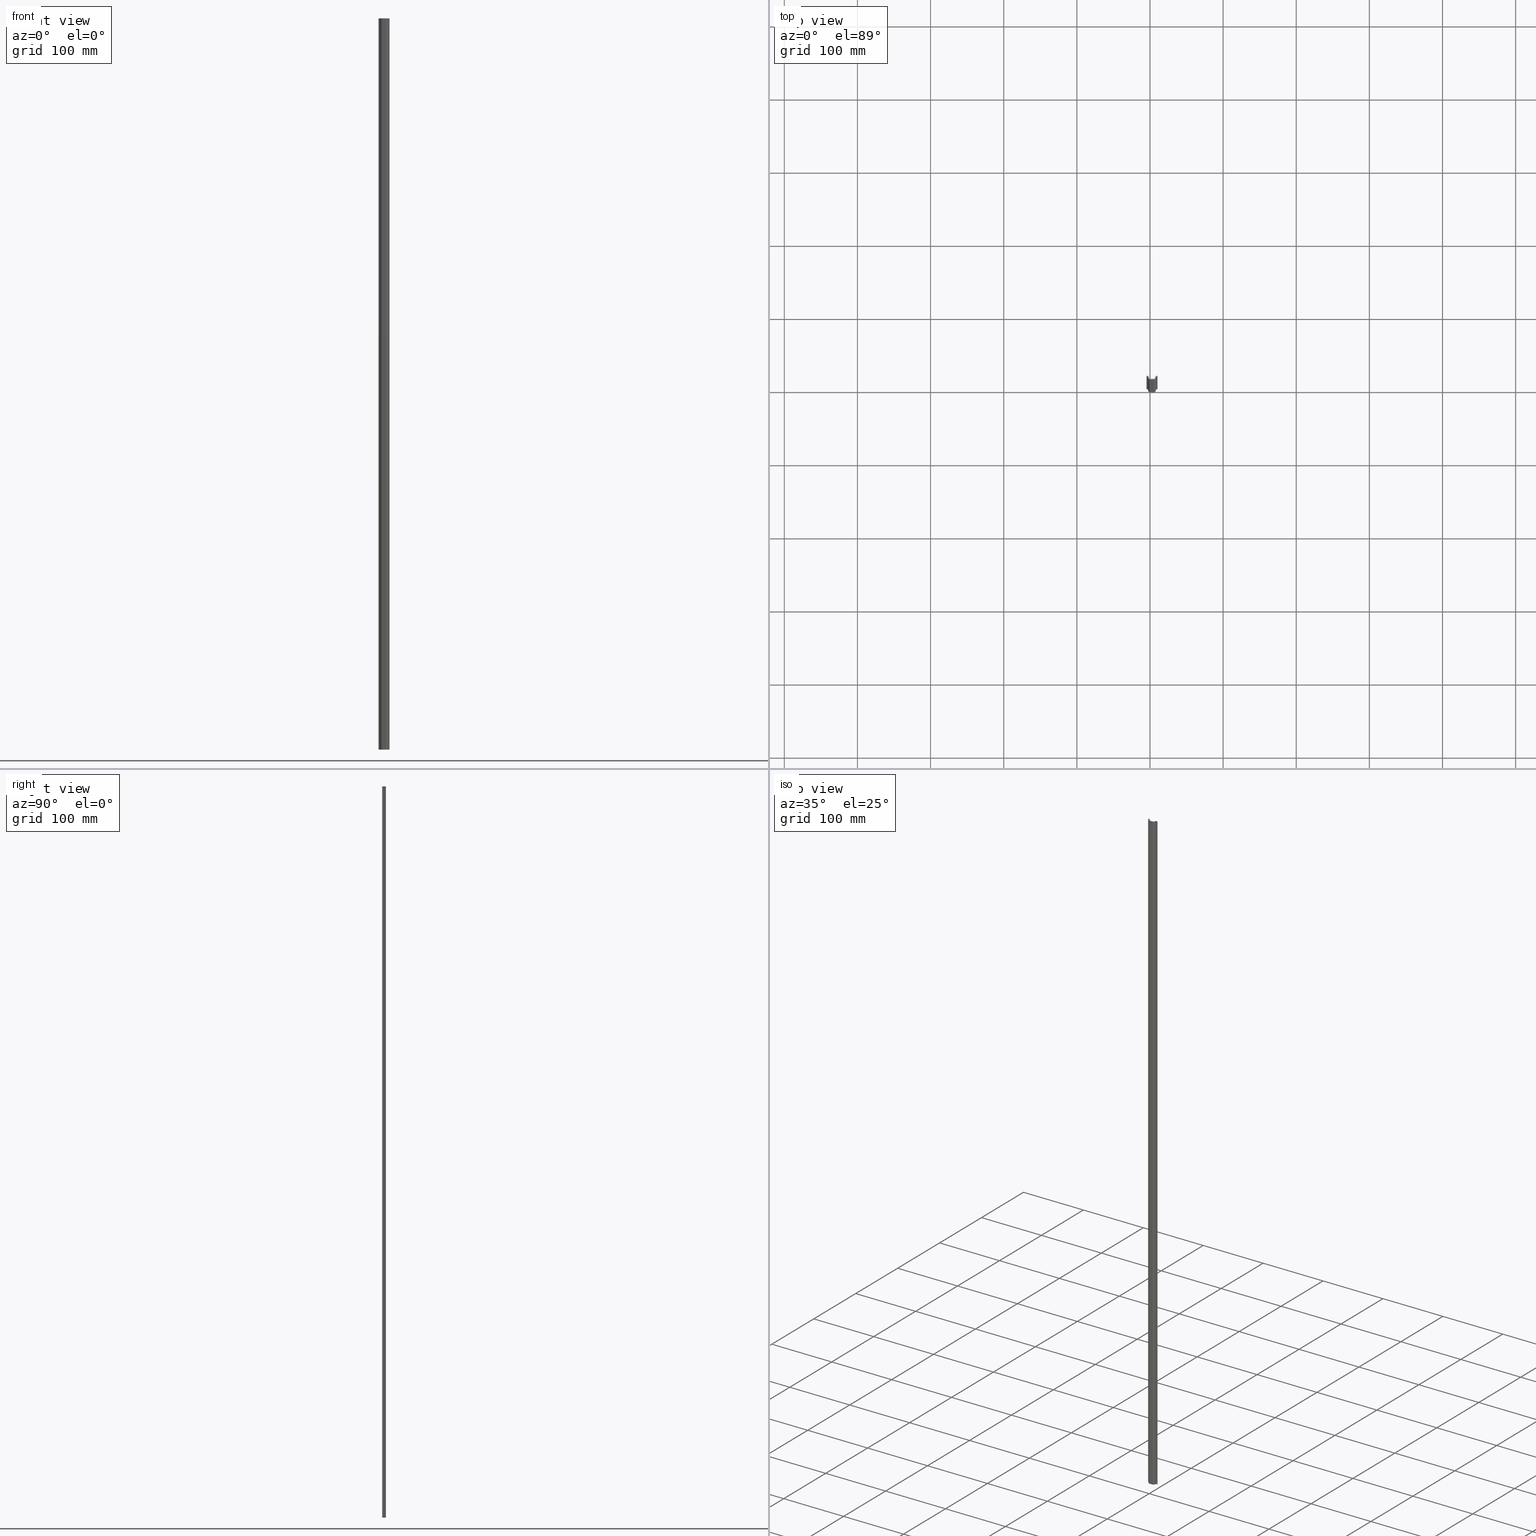
[diagram: canonical four-view strip — front | top / right | iso, engineering-drawing reading convention]
A machine part, canonical four-view strip (front | top / right | iso — engineering-drawing reading convention). The complete STEP part file that produces these views, byte-faithful:
ISO-10303-21;
HEADER;
FILE_DESCRIPTION (( 'STEP AP203' ),
    '1' );
FILE_NAME ('15x5,5 D�z Montaj Raylar� - 1 m.STEP',
    '2019-03-29T08:14:09',
    ( '' ),
    ( '' ),
    'SwSTEP 2.0',
    'SolidWorks 2011',
    '' );
FILE_SCHEMA (( 'CONFIG_CONTROL_DESIGN' ));
ENDSEC;

DATA;
#1 = PRODUCT ( '15x5,5 D�z Montaj Raylar� - 1 m', '15x5,5 D�z Montaj Raylar� - 1 m', '', ( #615 ) ) ;
#2 = MANIFOLD_SOLID_BREP ( 'Birle�tir1', #17 ) ;
#3 = UNCERTAINTY_MEASURE_WITH_UNIT (LENGTH_MEASURE( 1.000000000000000100E-005 ), #632, 'distance_accuracy_value', 'NONE');
#4 = DESIGN_CONTEXT ( 'detailed design', #685, 'design' ) ;
#5 = PRODUCT_DEFINITION_SHAPE ( 'NONE', 'NONE',  #760 ) ;
#6 = VECTOR ( 'NONE', #392, 1000.000000000000000 ) ;
#7 = VECTOR ( 'NONE', #378, 1000.000000000000000 ) ;
#8 = VECTOR ( 'NONE', #328, 1000.000000000000000 ) ;
#9 = CIRCLE ( 'NONE', #40, 1.200000000000089900 ) ;
#10 = VECTOR ( 'NONE', #445, 1000.000000000000000 ) ;
#11 = CIRCLE ( 'NONE', #37, 1.500000000000339500 ) ;
#12 = AXIS2_PLACEMENT_3D ( 'NONE', #446, #428, #416 ) ;
#13 = VECTOR ( 'NONE', #384, 1000.000000000000000 ) ;
#14 = CIRCLE ( 'NONE', #47, 1.200000000000588600 ) ;
#15 = VECTOR ( 'NONE', #452, 1000.000000000000000 ) ;
#16 = VECTOR ( 'NONE', #399, 1000.000000000000000 ) ;
#17 = CLOSED_SHELL ( 'NONE', ( #753, #778, #752, #771, #749, #756, #766, #776, #759, #738, #768, #739, #740, #755, #751, #775, #758, #757, #772, #765, #763, #764 ) ) ;
#18 = CIRCLE ( 'NONE', #29, 2.200000000000563300 ) ;
#19 = CIRCLE ( 'NONE', #44, 2.200000000000563300 ) ;
#20 = VECTOR ( 'NONE', #347, 1000.000000000000000 ) ;
#21 = CIRCLE ( 'NONE', #24, 1.200000000000089900 ) ;
#22 = VECTOR ( 'NONE', #394, 1000.000000000000000 ) ;
#23 = VECTOR ( 'NONE', #379, 1000.000000000000000 ) ;
#24 = AXIS2_PLACEMENT_3D ( 'NONE', #405, #374, #377 ) ;
#25 = VECTOR ( 'NONE', #450, 1000.000000000000000 ) ;
#26 = VECTOR ( 'NONE', #417, 1000.000000000000000 ) ;
#27 = AXIS2_PLACEMENT_3D ( 'NONE', #382, #383, #401 ) ;
#28 = VECTOR ( 'NONE', #367, 1000.000000000000000 ) ;
#29 = AXIS2_PLACEMENT_3D ( 'NONE', #398, #366, #368 ) ;
#30 = VECTOR ( 'NONE', #414, 1000.000000000000000 ) ;
#31 = VECTOR ( 'NONE', #415, 1000.000000000000000 ) ;
#32 = VECTOR ( 'NONE', #410, 1000.000000000000000 ) ;
#33 = VECTOR ( 'NONE', #385, 1000.000000000000000 ) ;
#34 = VECTOR ( 'NONE', #393, 1000.000000000000000 ) ;
#35 = VECTOR ( 'NONE', #456, 1000.000000000000000 ) ;
#36 = CIRCLE ( 'NONE', #12, 2.500000000000150500 ) ;
#37 = AXIS2_PLACEMENT_3D ( 'NONE', #437, #433, #438 ) ;
#38 = VECTOR ( 'NONE', #334, 1000.000000000000000 ) ;
#39 = VECTOR ( 'NONE', #396, 1000.000000000000000 ) ;
#40 = AXIS2_PLACEMENT_3D ( 'NONE', #389, #397, #404 ) ;
#41 = CIRCLE ( 'NONE', #27, 1.500000000000167000 ) ;
#42 = VECTOR ( 'NONE', #420, 1000.000000000000000 ) ;
#43 = VECTOR ( 'NONE', #425, 1000.000000000000000 ) ;
#44 = AXIS2_PLACEMENT_3D ( 'NONE', #322, #345, #346 ) ;
#45 = AXIS2_PLACEMENT_3D ( 'NONE', #348, #350, #354 ) ;
#46 = CIRCLE ( 'NONE', #45, 1.200000000000588600 ) ;
#47 = AXIS2_PLACEMENT_3D ( 'NONE', #388, #400, #380 ) ;
#48 = VECTOR ( 'NONE', #340, 1000.000000000000000 ) ;
#49 = VECTOR ( 'NONE', #491, 1000.000000000000000 ) ;
#50 = AXIS2_PLACEMENT_3D ( 'NONE', #507, #532, #528 ) ;
#51 = AXIS2_PLACEMENT_3D ( 'NONE', #470, #458, #461 ) ;
#52 = VECTOR ( 'NONE', #471, 1000.000000000000000 ) ;
#53 = AXIS2_PLACEMENT_3D ( 'NONE', #553, #580, #568 ) ;
#54 = AXIS2_PLACEMENT_3D ( 'NONE', #595, #567, #591 ) ;
#55 = VECTOR ( 'NONE', #423, 1000.000000000000000 ) ;
#56 = VECTOR ( 'NONE', #539, 1000.000000000000000 ) ;
#57 = CIRCLE ( 'NONE', #92, 2.500000000000280700 ) ;
#58 = CIRCLE ( 'NONE', #51, 2.200000000000120100 ) ;
#59 = VECTOR ( 'NONE', #475, 1000.000000000000000 ) ;
#60 = VECTOR ( 'NONE', #455, 1000.000000000000000 ) ;
#61 = VECTOR ( 'NONE', #459, 1000.000000000000000 ) ;
#62 = VECTOR ( 'NONE', #505, 1000.000000000000000 ) ;
#63 = VECTOR ( 'NONE', #466, 1000.000000000000000 ) ;
#64 = AXIS2_PLACEMENT_3D ( 'NONE', #543, #514, #540 ) ;
#65 = AXIS2_PLACEMENT_3D ( 'NONE', #601, #623, #607 ) ;
#66 = VECTOR ( 'NONE', #486, 1000.000000000000000 ) ;
#67 = VECTOR ( 'NONE', #511, 1000.000000000000000 ) ;
#68 = AXIS2_PLACEMENT_3D ( 'NONE', #519, #521, #500 ) ;
#69 = AXIS2_PLACEMENT_3D ( 'NONE', #492, #493, #489 ) ;
#70 = VECTOR ( 'NONE', #508, 1000.000000000000000 ) ;
#71 = AXIS2_PLACEMENT_3D ( 'NONE', #555, #561, #586 ) ;
#72 = VECTOR ( 'NONE', #545, 1000.000000000000000 ) ;
#73 = AXIS2_PLACEMENT_3D ( 'NONE', #537, #501, #541 ) ;
#74 = CIRCLE ( 'NONE', #99, 1.500000000000167000 ) ;
#75 = AXIS2_PLACEMENT_3D ( 'NONE', #556, #558, #573 ) ;
#76 = AXIS2_PLACEMENT_3D ( 'NONE', #534, #538, #565 ) ;
#77 = CIRCLE ( 'NONE', #105, 2.200000000000120100 ) ;
#78 = AXIS2_PLACEMENT_3D ( 'NONE', #587, #549, #572 ) ;
#79 = AXIS2_PLACEMENT_3D ( 'NONE', #548, #585, #551 ) ;
#80 = AXIS2_PLACEMENT_3D ( 'NONE', #559, #575, #582 ) ;
#81 = VECTOR ( 'NONE', #513, 1000.000000000000000 ) ;
#82 = VECTOR ( 'NONE', #494, 1000.000000000000000 ) ;
#83 = VECTOR ( 'NONE', #485, 1000.000000000000000 ) ;
#84 = CIRCLE ( 'NONE', #50, 2.500000000000280700 ) ;
#85 = AXIS2_PLACEMENT_3D ( 'NONE', #563, #589, #576 ) ;
#86 = AXIS2_PLACEMENT_3D ( 'NONE', #588, #562, #578 ) ;
#87 = AXIS2_PLACEMENT_3D ( 'NONE', #626, #622, #628 ) ;
#88 = AXIS2_PLACEMENT_3D ( 'NONE', #605, #643, #606 ) ;
#89 =( GEOMETRIC_REPRESENTATION_CONTEXT ( 3 ) GLOBAL_UNCERTAINTY_ASSIGNED_CONTEXT ( ( #3 ) ) GLOBAL_UNIT_ASSIGNED_CONTEXT ( ( #632, #633, #600 ) ) REPRESENTATION_CONTEXT ( 'NONE', 'WORKASPACE' ) );
#90 = CIRCLE ( 'NONE', #73, 1.500000000000339500 ) ;
#91 = AXIS2_PLACEMENT_3D ( 'NONE', #629, #642, #640 ) ;
#92 = AXIS2_PLACEMENT_3D ( 'NONE', #476, #482, #496 ) ;
#93 = CIRCLE ( 'NONE', #69, 2.500000000000150500 ) ;
#94 = VECTOR ( 'NONE', #529, 1000.000000000000000 ) ;
#95 = AXIS2_PLACEMENT_3D ( 'NONE', #638, #609, #637 ) ;
#96 = AXIS2_PLACEMENT_3D ( 'NONE', #506, #522, #536 ) ;
#97 = AXIS2_PLACEMENT_3D ( 'NONE', #526, #516, #542 ) ;
#98 = AXIS2_PLACEMENT_3D ( 'NONE', #611, #624, #639 ) ;
#99 = AXIS2_PLACEMENT_3D ( 'NONE', #465, #468, #480 ) ;
#100 = VECTOR ( 'NONE', #427, 1000.000000000000000 ) ;
#101 = VECTOR ( 'NONE', #430, 1000.000000000000000 ) ;
#102 = VECTOR ( 'NONE', #487, 1000.000000000000000 ) ;
#103 = AXIS2_PLACEMENT_3D ( 'NONE', #598, #594, #571 ) ;
#104 = AXIS2_PLACEMENT_3D ( 'NONE', #610, #636, #641 ) ;
#105 = AXIS2_PLACEMENT_3D ( 'NONE', #477, #474, #462 ) ;
#106 = CC_DESIGN_APPROVAL ( #774, ( #760 ) ) ;
#107 = AXIS2_PLACEMENT_3D ( 'NONE', #621, #616, #635 ) ;
#108 = LOCAL_TIME ( 11, 14, 9.000000000000000000, #648 ) ;
#109 = ORGANIZATION ( 'BEL�RT�LMEM��', 'BEL�RT�LMEM��', '' ) ;
#110 = PRODUCT_DEFINITION_FORMATION_WITH_SPECIFIED_SOURCE ( '     Herhangi', '', #1, .NOT_KNOWN. ) ;
#111 = LOCAL_TIME ( 11, 14, 9.000000000000000000, #674 ) ;
#112 = CC_DESIGN_SECURITY_CLASSIFICATION ( #114, ( #110 ) ) ;
#113 = LOCAL_TIME ( 11, 14, 9.000000000000000000, #665 ) ;
#114 = SECURITY_CLASSIFICATION ( '', '', #663 ) ;
#115 = CC_DESIGN_APPROVAL ( #779, ( #114 ) ) ;
#116 = APPROVAL_PERSON_ORGANIZATION ( #649, #754, #660 ) ;
#117 = LOCAL_TIME ( 11, 14, 9.000000000000000000, #675 ) ;
#118 = CC_DESIGN_APPROVAL ( #754, ( #110 ) ) ;
#119 = LOCAL_TIME ( 11, 14, 9.000000000000000000, #659 ) ;
#120 = APPROVAL_PERSON_ORGANIZATION ( #673, #774, #650 ) ;
#121 = APPROVAL_PERSON_ORGANIZATION ( #681, #779, #664 ) ;
#122 = ORIENTED_EDGE ( 'NONE', *, *, #692, .T. ) ;
#123 = ORIENTED_EDGE ( 'NONE', *, *, #743, .F. ) ;
#124 = ORIENTED_EDGE ( 'NONE', *, *, #724, .F. ) ;
#125 = ORIENTED_EDGE ( 'NONE', *, *, #692, .F. ) ;
#126 = ORIENTED_EDGE ( 'NONE', *, *, #746, .F. ) ;
#127 = ORIENTED_EDGE ( 'NONE', *, *, #742, .F. ) ;
#128 = ORIENTED_EDGE ( 'NONE', *, *, #699, .F. ) ;
#129 = ORIENTED_EDGE ( 'NONE', *, *, #697, .T. ) ;
#130 = ORIENTED_EDGE ( 'NONE', *, *, #709, .F. ) ;
#131 = ORIENTED_EDGE ( 'NONE', *, *, #737, .F. ) ;
#132 = ORIENTED_EDGE ( 'NONE', *, *, #721, .F. ) ;
#133 = ORIENTED_EDGE ( 'NONE', *, *, #691, .F. ) ;
#134 = ORIENTED_EDGE ( 'NONE', *, *, #711, .F. ) ;
#135 = ORIENTED_EDGE ( 'NONE', *, *, #717, .T. ) ;
#136 = ORIENTED_EDGE ( 'NONE', *, *, #707, .T. ) ;
#137 = ORIENTED_EDGE ( 'NONE', *, *, #747, .T. ) ;
#138 = ORIENTED_EDGE ( 'NONE', *, *, #746, .T. ) ;
#139 = ORIENTED_EDGE ( 'NONE', *, *, #732, .F. ) ;
#140 = ORIENTED_EDGE ( 'NONE', *, *, #703, .F. ) ;
#141 = ORIENTED_EDGE ( 'NONE', *, *, #694, .T. ) ;
#142 = ORIENTED_EDGE ( 'NONE', *, *, #706, .F. ) ;
#143 = ORIENTED_EDGE ( 'NONE', *, *, #690, .F. ) ;
#144 = ORIENTED_EDGE ( 'NONE', *, *, #700, .F. ) ;
#145 = ORIENTED_EDGE ( 'NONE', *, *, #730, .F. ) ;
#146 = ORIENTED_EDGE ( 'NONE', *, *, #720, .F. ) ;
#147 = ORIENTED_EDGE ( 'NONE', *, *, #687, .F. ) ;
#148 = ORIENTED_EDGE ( 'NONE', *, *, #693, .F. ) ;
#149 = ORIENTED_EDGE ( 'NONE', *, *, #741, .F. ) ;
#150 = ORIENTED_EDGE ( 'NONE', *, *, #717, .F. ) ;
#151 = ORIENTED_EDGE ( 'NONE', *, *, #748, .T. ) ;
#152 = ORIENTED_EDGE ( 'NONE', *, *, #729, .F. ) ;
#153 = ORIENTED_EDGE ( 'NONE', *, *, #708, .T. ) ;
#154 = ORIENTED_EDGE ( 'NONE', *, *, #714, .F. ) ;
#155 = ORIENTED_EDGE ( 'NONE', *, *, #729, .T. ) ;
#156 = ORIENTED_EDGE ( 'NONE', *, *, #744, .F. ) ;
#157 = ORIENTED_EDGE ( 'NONE', *, *, #723, .F. ) ;
#158 = ORIENTED_EDGE ( 'NONE', *, *, #713, .T. ) ;
#159 = ORIENTED_EDGE ( 'NONE', *, *, #719, .F. ) ;
#160 = ORIENTED_EDGE ( 'NONE', *, *, #695, .T. ) ;
#161 = ORIENTED_EDGE ( 'NONE', *, *, #690, .T. ) ;
#162 = ORIENTED_EDGE ( 'NONE', *, *, #734, .T. ) ;
#163 = ORIENTED_EDGE ( 'NONE', *, *, #722, .F. ) ;
#164 = ORIENTED_EDGE ( 'NONE', *, *, #687, .T. ) ;
#165 = ORIENTED_EDGE ( 'NONE', *, *, #719, .T. ) ;
#166 = ORIENTED_EDGE ( 'NONE', *, *, #714, .T. ) ;
#167 = ORIENTED_EDGE ( 'NONE', *, *, #693, .T. ) ;
#168 = ORIENTED_EDGE ( 'NONE', *, *, #698, .F. ) ;
#169 = ORIENTED_EDGE ( 'NONE', *, *, #722, .T. ) ;
#170 = ORIENTED_EDGE ( 'NONE', *, *, #716, .F. ) ;
#171 = ORIENTED_EDGE ( 'NONE', *, *, #696, .T. ) ;
#172 = ORIENTED_EDGE ( 'NONE', *, *, #696, .F. ) ;
#173 = ORIENTED_EDGE ( 'NONE', *, *, #688, .T. ) ;
#174 = ORIENTED_EDGE ( 'NONE', *, *, #726, .T. ) ;
#175 = ORIENTED_EDGE ( 'NONE', *, *, #715, .T. ) ;
#176 = ORIENTED_EDGE ( 'NONE', *, *, #733, .T. ) ;
#177 = ORIENTED_EDGE ( 'NONE', *, *, #697, .F. ) ;
#178 = ORIENTED_EDGE ( 'NONE', *, *, #747, .F. ) ;
#179 = ORIENTED_EDGE ( 'NONE', *, *, #704, .F. ) ;
#180 = ORIENTED_EDGE ( 'NONE', *, *, #702, .T. ) ;
#181 = ORIENTED_EDGE ( 'NONE', *, *, #686, .F. ) ;
#182 = ORIENTED_EDGE ( 'NONE', *, *, #730, .T. ) ;
#183 = ORIENTED_EDGE ( 'NONE', *, *, #699, .T. ) ;
#184 = ORIENTED_EDGE ( 'NONE', *, *, #732, .T. ) ;
#185 = ORIENTED_EDGE ( 'NONE', *, *, #725, .T. ) ;
#186 = ORIENTED_EDGE ( 'NONE', *, *, #727, .T. ) ;
#187 = ORIENTED_EDGE ( 'NONE', *, *, #689, .T. ) ;
#188 = ORIENTED_EDGE ( 'NONE', *, *, #712, .T. ) ;
#189 = ORIENTED_EDGE ( 'NONE', *, *, #711, .T. ) ;
#190 = ORIENTED_EDGE ( 'NONE', *, *, #737, .T. ) ;
#191 = ORIENTED_EDGE ( 'NONE', *, *, #743, .T. ) ;
#192 = ORIENTED_EDGE ( 'NONE', *, *, #710, .T. ) ;
#193 = ORIENTED_EDGE ( 'NONE', *, *, #700, .T. ) ;
#194 = ORIENTED_EDGE ( 'NONE', *, *, #710, .F. ) ;
#195 = ORIENTED_EDGE ( 'NONE', *, *, #718, .F. ) ;
#196 = CARTESIAN_POINT ( 'NONE',  ( -3.700000000000881300, 5.300000000000766300, 0.0000000000000000000 ) ) ;
#197 = CARTESIAN_POINT ( 'NONE',  ( 7.999999999999386300, 3.099999999999913500, 1000.000000000000000 ) ) ;
#198 = ORIENTED_EDGE ( 'NONE', *, *, #695, .F. ) ;
#199 = ORIENTED_EDGE ( 'NONE', *, *, #686, .T. ) ;
#200 = ORIENTED_EDGE ( 'NONE', *, *, #718, .T. ) ;
#201 = ORIENTED_EDGE ( 'NONE', *, *, #715, .F. ) ;
#202 = ORIENTED_EDGE ( 'NONE', *, *, #701, .F. ) ;
#203 = EDGE_LOOP ( 'NONE', ( #140, #146, #162, #132 ) ) ;
#204 = EDGE_LOOP ( 'NONE', ( #180, #145, #147, #127 ) ) ;
#205 = EDGE_LOOP ( 'NONE', ( #211, #234, #139, #138 ) ) ;
#206 = ORIENTED_EDGE ( 'NONE', *, *, #745, .F. ) ;
#207 = ORIENTED_EDGE ( 'NONE', *, *, #728, .F. ) ;
#208 = ORIENTED_EDGE ( 'NONE', *, *, #741, .T. ) ;
#209 = ORIENTED_EDGE ( 'NONE', *, *, #748, .F. ) ;
#210 = ORIENTED_EDGE ( 'NONE', *, *, #723, .T. ) ;
#211 = ORIENTED_EDGE ( 'NONE', *, *, #728, .T. ) ;
#212 = ORIENTED_EDGE ( 'NONE', *, *, #698, .T. ) ;
#213 = ORIENTED_EDGE ( 'NONE', *, *, #734, .F. ) ;
#214 = ORIENTED_EDGE ( 'NONE', *, *, #689, .F. ) ;
#215 = ORIENTED_EDGE ( 'NONE', *, *, #705, .T. ) ;
#216 = ORIENTED_EDGE ( 'NONE', *, *, #731, .T. ) ;
#217 = ORIENTED_EDGE ( 'NONE', *, *, #713, .F. ) ;
#218 = ORIENTED_EDGE ( 'NONE', *, *, #688, .F. ) ;
#219 = ORIENTED_EDGE ( 'NONE', *, *, #736, .F. ) ;
#220 = ORIENTED_EDGE ( 'NONE', *, *, #733, .F. ) ;
#221 = ORIENTED_EDGE ( 'NONE', *, *, #701, .T. ) ;
#222 = EDGE_LOOP ( 'NONE', ( #177, #159, #130, #126 ) ) ;
#223 = ORIENTED_EDGE ( 'NONE', *, *, #744, .T. ) ;
#224 = ORIENTED_EDGE ( 'NONE', *, *, #707, .F. ) ;
#225 = ORIENTED_EDGE ( 'NONE', *, *, #694, .F. ) ;
#226 = ORIENTED_EDGE ( 'NONE', *, *, #721, .T. ) ;
#227 = ORIENTED_EDGE ( 'NONE', *, *, #691, .T. ) ;
#228 = ORIENTED_EDGE ( 'NONE', *, *, #726, .F. ) ;
#229 = ORIENTED_EDGE ( 'NONE', *, *, #735, .T. ) ;
#230 = ORIENTED_EDGE ( 'NONE', *, *, #725, .F. ) ;
#231 = ORIENTED_EDGE ( 'NONE', *, *, #727, .F. ) ;
#232 = ORIENTED_EDGE ( 'NONE', *, *, #709, .T. ) ;
#233 = EDGE_LOOP ( 'NONE', ( #201, #174, #124, #152, #143, #167, #153, #227, #214, #243, #206, #231, #220, #248, #207, #232, #191, #208, #237, #244 ) ) ;
#234 = ORIENTED_EDGE ( 'NONE', *, *, #703, .T. ) ;
#235 = ORIENTED_EDGE ( 'NONE', *, *, #745, .T. ) ;
#236 = ORIENTED_EDGE ( 'NONE', *, *, #702, .F. ) ;
#237 = ORIENTED_EDGE ( 'NONE', *, *, #705, .F. ) ;
#238 = ORIENTED_EDGE ( 'NONE', *, *, #736, .T. ) ;
#239 = ORIENTED_EDGE ( 'NONE', *, *, #724, .T. ) ;
#240 = ORIENTED_EDGE ( 'NONE', *, *, #712, .F. ) ;
#241 = ORIENTED_EDGE ( 'NONE', *, *, #706, .T. ) ;
#242 = ORIENTED_EDGE ( 'NONE', *, *, #735, .F. ) ;
#243 = ORIENTED_EDGE ( 'NONE', *, *, #716, .T. ) ;
#244 = ORIENTED_EDGE ( 'NONE', *, *, #742, .T. ) ;
#245 = ORIENTED_EDGE ( 'NONE', *, *, #704, .T. ) ;
#246 = ORIENTED_EDGE ( 'NONE', *, *, #731, .F. ) ;
#247 = ORIENTED_EDGE ( 'NONE', *, *, #708, .F. ) ;
#248 = ORIENTED_EDGE ( 'NONE', *, *, #720, .T. ) ;
#249 = EDGE_LOOP ( 'NONE', ( #194, #223, #123, #165 ) ) ;
#250 = EDGE_LOOP ( 'NONE', ( #175, #164, #246, #188 ) ) ;
#251 = VERTEX_POINT ( 'NONE', #301 ) ;
#252 = VERTEX_POINT ( 'NONE', #296 ) ;
#253 = VERTEX_POINT ( 'NONE', #302 ) ;
#254 = VERTEX_POINT ( 'NONE', #196 ) ;
#255 = EDGE_LOOP ( 'NONE', ( #209, #155, #157, #230 ) ) ;
#256 = VERTEX_POINT ( 'NONE', #197 ) ;
#257 = VERTEX_POINT ( 'NONE', #285 ) ;
#258 = VERTEX_POINT ( 'NONE', #303 ) ;
#259 = VERTEX_POINT ( 'NONE', #295 ) ;
#260 = VERTEX_POINT ( 'NONE', #307 ) ;
#261 = VERTEX_POINT ( 'NONE', #321 ) ;
#262 = EDGE_LOOP ( 'NONE', ( #225, #236, #215, #163 ) ) ;
#263 = VERTEX_POINT ( 'NONE', #314 ) ;
#264 = VERTEX_POINT ( 'NONE', #360 ) ;
#265 = VERTEX_POINT ( 'NONE', #341 ) ;
#266 = VERTEX_POINT ( 'NONE', #361 ) ;
#267 = VERTEX_POINT ( 'NONE', #365 ) ;
#268 = VERTEX_POINT ( 'NONE', #319 ) ;
#269 = VERTEX_POINT ( 'NONE', #362 ) ;
#270 = VERTEX_POINT ( 'NONE', #325 ) ;
#271 = EDGE_LOOP ( 'NONE', ( #242, #219, #228, #240 ) ) ;
#272 = EDGE_LOOP ( 'NONE', ( #178, #169, #149, #156 ) ) ;
#273 = EDGE_LOOP ( 'NONE', ( #195, #245, #247, #193 ) ) ;
#274 = EDGE_LOOP ( 'NONE', ( #128, #134, #158, #170 ) ) ;
#275 = VERTEX_POINT ( 'NONE', #358 ) ;
#276 = EDGE_LOOP ( 'NONE', ( #172, #181, #133, #179 ) ) ;
#277 = VERTEX_POINT ( 'NONE', #344 ) ;
#278 = VERTEX_POINT ( 'NONE', #333 ) ;
#279 = VERTEX_POINT ( 'NONE', #323 ) ;
#280 = VERTEX_POINT ( 'NONE', #356 ) ;
#281 = VERTEX_POINT ( 'NONE', #351 ) ;
#282 = VERTEX_POINT ( 'NONE', #327 ) ;
#283 = VERTEX_POINT ( 'NONE', #320 ) ;
#284 = VERTEX_POINT ( 'NONE', #338 ) ;
#285 = CARTESIAN_POINT ( 'NONE',  ( 5.499999999999274400, 1.299999999999908800, 0.0000000000000000000 ) ) ;
#286 = EDGE_LOOP ( 'NONE', ( #154, #198, #235, #217 ) ) ;
#287 = EDGE_LOOP ( 'NONE', ( #202, #218, #161, #151 ) ) ;
#288 = EDGE_LOOP ( 'NONE', ( #150, #144, #148, #173 ) ) ;
#289 = EDGE_LOOP ( 'NONE', ( #168, #136, #186, #160 ) ) ;
#290 = VERTEX_POINT ( 'NONE', #359 ) ;
#291 = VERTEX_POINT ( 'NONE', #335 ) ;
#292 = VERTEX_POINT ( 'NONE', #324 ) ;
#293 = VERTEX_POINT ( 'NONE', #339 ) ;
#294 = VERTEX_POINT ( 'NONE', #315 ) ;
#295 = CARTESIAN_POINT ( 'NONE',  ( 10.24999999999941000, 5.300000000000008700, 0.0000000000000000000 ) ) ;
#296 = CARTESIAN_POINT ( 'NONE',  ( -8.443996105043881800E-015, 0.2999999999999992700, 1000.000000000000000 ) ) ;
#297 = VERTEX_POINT ( 'NONE', #332 ) ;
#298 = EDGE_LOOP ( 'NONE', ( #142, #213, #176, #224 ) ) ;
#299 = VERTEX_POINT ( 'NONE', #326 ) ;
#300 = VERTEX_POINT ( 'NONE', #352 ) ;
#301 = CARTESIAN_POINT ( 'NONE',  ( -1.500000000000332600, 2.800000000000279600, 0.0000000000000000000 ) ) ;
#302 = CARTESIAN_POINT ( 'NONE',  ( 10.24999999999941000, 4.300000000000003400, 0.0000000000000000000 ) ) ;
#303 = CARTESIAN_POINT ( 'NONE',  ( 9.199999999999461100, 5.300000000000021100, 1000.000000000000000 ) ) ;
#304 = EDGE_LOOP ( 'NONE', ( #239, #238, #190, #210 ) ) ;
#305 = VERTEX_POINT ( 'NONE', #337 ) ;
#306 = EDGE_LOOP ( 'NONE', ( #187, #199, #125, #183 ) ) ;
#307 = CARTESIAN_POINT ( 'NONE',  ( -2.500000000000289500, 2.800000000000279600, 0.0000000000000000000 ) ) ;
#308 = VERTEX_POINT ( 'NONE', #331 ) ;
#309 = VERTEX_POINT ( 'NONE', #330 ) ;
#310 = VERTEX_POINT ( 'NONE', #343 ) ;
#311 = VERTEX_POINT ( 'NONE', #353 ) ;
#312 = EDGE_LOOP ( 'NONE', ( #241, #212, #166, #189, #122, #171, #200, #135, #221, #185, #131, #229, #216, #182, #141, #137, #192, #129, #184, #226 ) ) ;
#313 = LINE ( 'NONE', #363, #48 ) ;
#314 = CARTESIAN_POINT ( 'NONE',  ( 9.199999999999475300, 4.300000000000003400, 1000.000000000000000 ) ) ;
#315 = CARTESIAN_POINT ( 'NONE',  ( -1.500000000000317500, 3.100000000000203500, 0.0000000000000000000 ) ) ;
#316 = LINE ( 'NONE', #349, #8 ) ;
#317 = CARTESIAN_POINT ( 'NONE',  ( -4.750000000000827800, 4.300000000000787600, 0.0000000000000000000 ) ) ;
#318 = LINE ( 'NONE', #357, #33 ) ;
#319 = CARTESIAN_POINT ( 'NONE',  ( 9.199999999999475300, 4.300000000000003400, 0.0000000000000000000 ) ) ;
#320 = CARTESIAN_POINT ( 'NONE',  ( -4.750000000000827800, 5.300000000000766300, 0.0000000000000000000 ) ) ;
#321 = CARTESIAN_POINT ( 'NONE',  ( 5.499999999999305400, 0.3000000000000183600, 0.0000000000000000000 ) ) ;
#322 = CARTESIAN_POINT ( 'NONE',  ( -3.700000000000881300, 3.100000000000202600, 0.0000000000000000000 ) ) ;
#323 = CARTESIAN_POINT ( 'NONE',  ( -4.750000000000827800, 5.300000000000766300, 1000.000000000000000 ) ) ;
#324 = CARTESIAN_POINT ( 'NONE',  ( 7.999999999999386300, 3.099999999999913500, 0.0000000000000000000 ) ) ;
#325 = CARTESIAN_POINT ( 'NONE',  ( 10.24999999999941000, 4.300000000000003400, 1000.000000000000000 ) ) ;
#326 = CARTESIAN_POINT ( 'NONE',  ( -2.500000000000290000, 3.100000000000221700, 0.0000000000000000000 ) ) ;
#327 = CARTESIAN_POINT ( 'NONE',  ( -3.700000000000618800, 4.300000000000789400, 0.0000000000000000000 ) ) ;
#328 = DIRECTION ( 'NONE',  ( 0.0000000000000000000, 0.0000000000000000000, 1.000000000000000000 ) ) ;
#329 = CARTESIAN_POINT ( 'NONE',  ( 7.999999999999424500, 2.800000000000188100, 1000.000000000000000 ) ) ;
#330 = CARTESIAN_POINT ( 'NONE',  ( -1.500000000000317500, 3.100000000000203500, 1000.000000000000000 ) ) ;
#331 = CARTESIAN_POINT ( 'NONE',  ( -8.673617379884035500E-015, 1.299999999999908800, 0.0000000000000000000 ) ) ;
#332 = CARTESIAN_POINT ( 'NONE',  ( 10.24999999999941000, 5.300000000000008700, 1000.000000000000000 ) ) ;
#333 = CARTESIAN_POINT ( 'NONE',  ( 7.999999999999406700, 2.800000000000187700, 0.0000000000000000000 ) ) ;
#334 = DIRECTION ( 'NONE',  ( 0.0000000000000000000, 0.0000000000000000000, 1.000000000000000000 ) ) ;
#335 = CARTESIAN_POINT ( 'NONE',  ( -1.500000000000332600, 2.800000000000279600, 1000.000000000000000 ) ) ;
#336 = LINE ( 'NONE', #342, #20 ) ;
#337 = CARTESIAN_POINT ( 'NONE',  ( 6.999999999999342700, 3.099999999999913500, 0.0000000000000000000 ) ) ;
#338 = CARTESIAN_POINT ( 'NONE',  ( -3.700000000000618800, 4.300000000000789400, 1000.000000000000000 ) ) ;
#339 = CARTESIAN_POINT ( 'NONE',  ( 6.999999999999342700, 3.099999999999913500, 1000.000000000000000 ) ) ;
#340 = DIRECTION ( 'NONE',  ( 0.0000000000000000000, 0.0000000000000000000, 1.000000000000000000 ) ) ;
#341 = CARTESIAN_POINT ( 'NONE',  ( 5.499999999999305400, 0.3000000000000183600, 1000.000000000000000 ) ) ;
#342 = CARTESIAN_POINT ( 'NONE',  ( -3.700000000000881300, 5.300000000000766300, 0.0000000000000000000 ) ) ;
#343 = CARTESIAN_POINT ( 'NONE',  ( -2.500000000000290000, 3.100000000000221700, 1000.000000000000000 ) ) ;
#344 = CARTESIAN_POINT ( 'NONE',  ( 6.999999999999385400, 2.800000000000133900, 0.0000000000000000000 ) ) ;
#345 = DIRECTION ( 'NONE',  ( 0.0000000000000000000, 0.0000000000000000000, 1.000000000000000000 ) ) ;
#346 = DIRECTION ( 'NONE',  ( -1.000000000000000000, 0.0000000000000000000, 0.0000000000000000000 ) ) ;
#347 = DIRECTION ( 'NONE',  ( 1.000000000000000000, 0.0000000000000000000, 0.0000000000000000000 ) ) ;
#348 = CARTESIAN_POINT ( 'NONE',  ( -3.700000000000881300, 3.100000000000202600, 0.0000000000000000000 ) ) ;
#349 = CARTESIAN_POINT ( 'NONE',  ( -3.700000000000881300, 5.300000000000766300, 1000.000000000000000 ) ) ;
#350 = DIRECTION ( 'NONE',  ( -0.0000000000000000000, -0.0000000000000000000, -1.000000000000000000 ) ) ;
#351 = CARTESIAN_POINT ( 'NONE',  ( 6.999999999999385400, 2.800000000000133900, 1000.000000000000000 ) ) ;
#352 = CARTESIAN_POINT ( 'NONE',  ( -4.750000000000827800, 4.300000000000787600, 0.0000000000000000000 ) ) ;
#353 = CARTESIAN_POINT ( 'NONE',  ( -4.750000000000827800, 4.300000000000787600, 1000.000000000000000 ) ) ;
#354 = DIRECTION ( 'NONE',  ( -1.000000000000000000, 0.0000000000000000000, 0.0000000000000000000 ) ) ;
#355 = LINE ( 'NONE', #317, #13 ) ;
#356 = CARTESIAN_POINT ( 'NONE',  ( -8.673617379884035500E-015, 1.299999999999936800, 1000.000000000000000 ) ) ;
#357 = CARTESIAN_POINT ( 'NONE',  ( -8.673617379884035500E-015, 1.299999999999908800, 1000.000000000000000 ) ) ;
#358 = CARTESIAN_POINT ( 'NONE',  ( 5.499999999999274400, 1.299999999999936800, 1000.000000000000000 ) ) ;
#359 = CARTESIAN_POINT ( 'NONE',  ( 9.199999999999461100, 5.300000000000021100, 0.0000000000000000000 ) ) ;
#360 = CARTESIAN_POINT ( 'NONE',  ( -3.700000000000881300, 5.300000000000766300, 1000.000000000000000 ) ) ;
#361 = CARTESIAN_POINT ( 'NONE',  ( -8.443996105043881800E-015, 0.2999999999999992700, 0.0000000000000000000 ) ) ;
#362 = CARTESIAN_POINT ( 'NONE',  ( 7.999999999999406700, 2.800000000000187700, 1000.000000000000000 ) ) ;
#363 = CARTESIAN_POINT ( 'NONE',  ( -3.700000000000355900, 4.300000000000791200, 1000.000000000000000 ) ) ;
#364 = LINE ( 'NONE', #329, #38 ) ;
#365 = CARTESIAN_POINT ( 'NONE',  ( -2.500000000000289500, 2.800000000000279600, 1000.000000000000000 ) ) ;
#366 = DIRECTION ( 'NONE',  ( 0.0000000000000000000, 0.0000000000000000000, 1.000000000000000000 ) ) ;
#367 = DIRECTION ( 'NONE',  ( 0.0000000000000000000, 0.0000000000000000000, 1.000000000000000000 ) ) ;
#368 = DIRECTION ( 'NONE',  ( -1.000000000000000000, 0.0000000000000000000, 0.0000000000000000000 ) ) ;
#369 = LINE ( 'NONE', #403, #7 ) ;
#370 = LINE ( 'NONE', #381, #6 ) ;
#371 = CARTESIAN_POINT ( 'NONE',  ( 7.999999999999386300, 3.099999999999913500, 1000.000000000000000 ) ) ;
#372 = LINE ( 'NONE', #375, #34 ) ;
#373 = CARTESIAN_POINT ( 'NONE',  ( -3.700000000000881300, 5.300000000000766300, 1000.000000000000000 ) ) ;
#374 = DIRECTION ( 'NONE',  ( -0.0000000000000000000, -0.0000000000000000000, -1.000000000000000000 ) ) ;
#375 = CARTESIAN_POINT ( 'NONE',  ( -4.750000000000827800, 5.300000000000766300, 1000.000000000000000 ) ) ;
#376 = LINE ( 'NONE', #395, #25 ) ;
#377 = DIRECTION ( 'NONE',  ( -1.000000000000000000, 0.0000000000000000000, 0.0000000000000000000 ) ) ;
#378 = DIRECTION ( 'NONE',  ( -1.000000000000000000, -0.0000000000000000000, -0.0000000000000000000 ) ) ;
#379 = DIRECTION ( 'NONE',  ( 0.0000000000000000000, -0.0000000000000000000, 1.000000000000000000 ) ) ;
#380 = DIRECTION ( 'NONE',  ( -1.000000000000000000, 0.0000000000000000000, 0.0000000000000000000 ) ) ;
#381 = CARTESIAN_POINT ( 'NONE',  ( -1.500000000000318000, 3.100000000000204400, 1000.000000000000000 ) ) ;
#382 = CARTESIAN_POINT ( 'NONE',  ( 5.499999999999274400, 2.800000000000187700, 1000.000000000000000 ) ) ;
#383 = DIRECTION ( 'NONE',  ( -0.0000000000000000000, -0.0000000000000000000, -1.000000000000000000 ) ) ;
#384 = DIRECTION ( 'NONE',  ( -1.000000000000000000, -0.0000000000000000000, 0.0000000000000000000 ) ) ;
#385 = DIRECTION ( 'NONE',  ( -0.0000000000000000000, 0.0000000000000000000, 1.000000000000000000 ) ) ;
#386 = LINE ( 'NONE', #373, #22 ) ;
#387 = CARTESIAN_POINT ( 'NONE',  ( -4.750000000000827800, 4.300000000000787600, 1000.000000000000000 ) ) ;
#388 = CARTESIAN_POINT ( 'NONE',  ( -3.700000000000881300, 3.100000000000202600, 1000.000000000000000 ) ) ;
#389 = CARTESIAN_POINT ( 'NONE',  ( 9.199999999999475300, 3.099999999999913500, 0.0000000000000000000 ) ) ;
#390 = CARTESIAN_POINT ( 'NONE',  ( -3.700000000000881300, 1.299999999999964700, 1000.000000000000000 ) ) ;
#391 = CARTESIAN_POINT ( 'NONE',  ( 6.999999999999356100, 3.099999999999913500, 1000.000000000000000 ) ) ;
#392 = DIRECTION ( 'NONE',  ( -0.0000000000000000000, -0.0000000000000000000, -1.000000000000000000 ) ) ;
#393 = DIRECTION ( 'NONE',  ( 0.0000000000000000000, -0.0000000000000000000, -1.000000000000000000 ) ) ;
#394 = DIRECTION ( 'NONE',  ( -1.000000000000000000, -0.0000000000000000000, -0.0000000000000000000 ) ) ;
#395 = CARTESIAN_POINT ( 'NONE',  ( 5.499999999999274400, 1.299999999999908800, 1000.000000000000000 ) ) ;
#396 = DIRECTION ( 'NONE',  ( -1.000000000000000000, -0.0000000000000000000, 0.0000000000000000000 ) ) ;
#397 = DIRECTION ( 'NONE',  ( -0.0000000000000000000, -0.0000000000000000000, -1.000000000000000000 ) ) ;
#398 = CARTESIAN_POINT ( 'NONE',  ( -3.700000000000881300, 3.100000000000202600, 1000.000000000000000 ) ) ;
#399 = DIRECTION ( 'NONE',  ( 0.0000000000000000000, 0.0000000000000000000, 1.000000000000000000 ) ) ;
#400 = DIRECTION ( 'NONE',  ( -0.0000000000000000000, -0.0000000000000000000, -1.000000000000000000 ) ) ;
#401 = DIRECTION ( 'NONE',  ( -1.000000000000000000, 0.0000000000000000000, 0.0000000000000000000 ) ) ;
#402 = LINE ( 'NONE', #391, #28 ) ;
#403 = CARTESIAN_POINT ( 'NONE',  ( 10.24999999999941000, 5.300000000000007800, 1000.000000000000000 ) ) ;
#404 = DIRECTION ( 'NONE',  ( -1.000000000000000000, 0.0000000000000000000, 0.0000000000000000000 ) ) ;
#405 = CARTESIAN_POINT ( 'NONE',  ( 9.199999999999475300, 3.099999999999913500, 1000.000000000000000 ) ) ;
#406 = LINE ( 'NONE', #390, #39 ) ;
#407 = LINE ( 'NONE', #387, #23 ) ;
#408 = LINE ( 'NONE', #371, #16 ) ;
#409 = CARTESIAN_POINT ( 'NONE',  ( -2.500000000000289100, 2.800000000000279600, 1000.000000000000000 ) ) ;
#410 = DIRECTION ( 'NONE',  ( -0.0000000000000000000, -0.0000000000000000000, -1.000000000000000000 ) ) ;
#411 = CARTESIAN_POINT ( 'NONE',  ( -4.750000000000827800, 5.300000000000766300, 1000.000000000000000 ) ) ;
#412 = CARTESIAN_POINT ( 'NONE',  ( -4.750000000000827800, 4.300000000000787600, 1000.000000000000000 ) ) ;
#413 = LINE ( 'NONE', #440, #10 ) ;
#414 = DIRECTION ( 'NONE',  ( 0.0000000000000000000, 1.000000000000000000, -0.0000000000000000000 ) ) ;
#415 = DIRECTION ( 'NONE',  ( 1.000000000000000000, 0.0000000000000000000, -0.0000000000000000000 ) ) ;
#416 = DIRECTION ( 'NONE',  ( -1.000000000000000000, 8.673617379883512900E-016, 0.0000000000000000000 ) ) ;
#417 = DIRECTION ( 'NONE',  ( 0.0000000000000000000, 1.000000000000000000, -0.0000000000000000000 ) ) ;
#418 = LINE ( 'NONE', #447, #15 ) ;
#419 = LINE ( 'NONE', #432, #42 ) ;
#420 = DIRECTION ( 'NONE',  ( -0.0000000000000000000, -1.000000000000000000, 0.0000000000000000000 ) ) ;
#421 = LINE ( 'NONE', #441, #32 ) ;
#422 = LINE ( 'NONE', #412, #31 ) ;
#423 = DIRECTION ( 'NONE',  ( -0.0000000000000000000, 0.0000000000000000000, 1.000000000000000000 ) ) ;
#424 = CARTESIAN_POINT ( 'NONE',  ( 6.999999999999329400, 3.399999999999913300, 0.0000000000000000000 ) ) ;
#425 = DIRECTION ( 'NONE',  ( -0.0000000000000000000, -1.000000000000000000, -0.0000000000000000000 ) ) ;
#426 = LINE ( 'NONE', #429, #101 ) ;
#427 = DIRECTION ( 'NONE',  ( 0.0000000000000000000, 1.000000000000000000, 0.0000000000000000000 ) ) ;
#428 = DIRECTION ( 'NONE',  ( 0.0000000000000000000, 0.0000000000000000000, 1.000000000000000000 ) ) ;
#429 = CARTESIAN_POINT ( 'NONE',  ( 6.999999999999329400, 3.399999999999913300, 1000.000000000000000 ) ) ;
#430 = DIRECTION ( 'NONE',  ( -0.0000000000000000000, -1.000000000000000000, -0.0000000000000000000 ) ) ;
#431 = LINE ( 'NONE', #454, #60 ) ;
#432 = CARTESIAN_POINT ( 'NONE',  ( -1.500000000000317100, 3.400000000000208200, 0.0000000000000000000 ) ) ;
#433 = DIRECTION ( 'NONE',  ( -0.0000000000000000000, -0.0000000000000000000, -1.000000000000000000 ) ) ;
#434 = LINE ( 'NONE', #449, #55 ) ;
#435 = CARTESIAN_POINT ( 'NONE',  ( -1.500000000000317100, 3.400000000000208200, 1000.000000000000000 ) ) ;
#436 = CARTESIAN_POINT ( 'NONE',  ( 10.24999999999941000, 4.300000000000003400, 1000.000000000000000 ) ) ;
#437 = CARTESIAN_POINT ( 'NONE',  ( -8.673617379884035500E-015, 2.800000000000279600, 1000.000000000000000 ) ) ;
#438 = DIRECTION ( 'NONE',  ( -1.000000000000000000, 0.0000000000000000000, 0.0000000000000000000 ) ) ;
#439 = LINE ( 'NONE', #409, #82 ) ;
#440 = CARTESIAN_POINT ( 'NONE',  ( -4.750000000000827800, 5.300000000000766300, 0.0000000000000000000 ) ) ;
#441 = CARTESIAN_POINT ( 'NONE',  ( -1.500000000000348200, 2.800000000000279600, 1000.000000000000000 ) ) ;
#442 = LINE ( 'NONE', #424, #100 ) ;
#443 = LINE ( 'NONE', #435, #30 ) ;
#444 = LINE ( 'NONE', #411, #43 ) ;
#445 = DIRECTION ( 'NONE',  ( 0.0000000000000000000, 1.000000000000000000, 0.0000000000000000000 ) ) ;
#446 = CARTESIAN_POINT ( 'NONE',  ( 5.499999999999274400, 2.800000000000187700, 0.0000000000000000000 ) ) ;
#447 = CARTESIAN_POINT ( 'NONE',  ( 10.24999999999941000, 5.300000000000007800, 0.0000000000000000000 ) ) ;
#448 = CARTESIAN_POINT ( 'NONE',  ( 5.499999999999337400, 0.3000000000000372400, 1000.000000000000000 ) ) ;
#449 = CARTESIAN_POINT ( 'NONE',  ( 10.24999999999941000, 5.300000000000007800, 1000.000000000000000 ) ) ;
#450 = DIRECTION ( 'NONE',  ( 0.0000000000000000000, -0.0000000000000000000, -1.000000000000000000 ) ) ;
#451 = LINE ( 'NONE', #436, #26 ) ;
#452 = DIRECTION ( 'NONE',  ( 1.000000000000000000, 0.0000000000000000000, 0.0000000000000000000 ) ) ;
#453 = LINE ( 'NONE', #448, #35 ) ;
#454 = CARTESIAN_POINT ( 'NONE',  ( 9.199999999999475300, 4.300000000000003400, 1000.000000000000000 ) ) ;
#455 = DIRECTION ( 'NONE',  ( -0.0000000000000000000, -0.0000000000000000000, -1.000000000000000000 ) ) ;
#456 = DIRECTION ( 'NONE',  ( -0.0000000000000000000, -0.0000000000000000000, -1.000000000000000000 ) ) ;
#457 = LINE ( 'NONE', #495, #102 ) ;
#458 = DIRECTION ( 'NONE',  ( 0.0000000000000000000, 0.0000000000000000000, 1.000000000000000000 ) ) ;
#459 = DIRECTION ( 'NONE',  ( 0.0000000000000000000, 1.000000000000000000, -0.0000000000000000000 ) ) ;
#460 = FACE_OUTER_BOUND ( 'NONE', #289, .T. ) ;
#461 = DIRECTION ( 'NONE',  ( -1.000000000000000000, 0.0000000000000000000, 0.0000000000000000000 ) ) ;
#462 = DIRECTION ( 'NONE',  ( -1.000000000000000000, 0.0000000000000000000, 0.0000000000000000000 ) ) ;
#463 = LINE ( 'NONE', #490, #52 ) ;
#464 = CARTESIAN_POINT ( 'NONE',  ( -3.700000000000881300, 0.2999999999999994900, 1000.000000000000000 ) ) ;
#465 = CARTESIAN_POINT ( 'NONE',  ( 5.499999999999274400, 2.800000000000187700, 0.0000000000000000000 ) ) ;
#466 = DIRECTION ( 'NONE',  ( 1.000000000000000000, 0.0000000000000000000, -0.0000000000000000000 ) ) ;
#467 = CARTESIAN_POINT ( 'NONE',  ( -2.500000000000290000, 3.400000000000202000, 0.0000000000000000000 ) ) ;
#468 = DIRECTION ( 'NONE',  ( -0.0000000000000000000, -0.0000000000000000000, -1.000000000000000000 ) ) ;
#469 = LINE ( 'NONE', #479, #61 ) ;
#470 = CARTESIAN_POINT ( 'NONE',  ( 9.199999999999475300, 3.099999999999913500, 0.0000000000000000000 ) ) ;
#471 = DIRECTION ( 'NONE',  ( 0.0000000000000000000, 0.0000000000000000000, 1.000000000000000000 ) ) ;
#472 = LINE ( 'NONE', #467, #59 ) ;
#473 = LINE ( 'NONE', #464, #63 ) ;
#474 = DIRECTION ( 'NONE',  ( 0.0000000000000000000, 0.0000000000000000000, 1.000000000000000000 ) ) ;
#475 = DIRECTION ( 'NONE',  ( 0.0000000000000000000, -1.000000000000000000, -0.0000000000000000000 ) ) ;
#476 = CARTESIAN_POINT ( 'NONE',  ( -8.673617379884035500E-015, 2.800000000000279600, 0.0000000000000000000 ) ) ;
#477 = CARTESIAN_POINT ( 'NONE',  ( 9.199999999999475300, 3.099999999999913500, 1000.000000000000000 ) ) ;
#478 = CARTESIAN_POINT ( 'NONE',  ( 5.499999999999274400, 1.299999999999908800, 0.0000000000000000000 ) ) ;
#479 = CARTESIAN_POINT ( 'NONE',  ( 7.999999999999388000, 2.800000000000187700, 1000.000000000000000 ) ) ;
#480 = DIRECTION ( 'NONE',  ( -1.000000000000000000, 0.0000000000000000000, 0.0000000000000000000 ) ) ;
#481 = LINE ( 'NONE', #484, #83 ) ;
#482 = DIRECTION ( 'NONE',  ( 0.0000000000000000000, 0.0000000000000000000, 1.000000000000000000 ) ) ;
#483 = LINE ( 'NONE', #478, #49 ) ;
#484 = CARTESIAN_POINT ( 'NONE',  ( -8.214374830203726600E-015, 0.2999999999999990500, 1000.000000000000000 ) ) ;
#485 = DIRECTION ( 'NONE',  ( 0.0000000000000000000, 0.0000000000000000000, 1.000000000000000000 ) ) ;
#486 = DIRECTION ( 'NONE',  ( -1.000000000000000000, -0.0000000000000000000, 0.0000000000000000000 ) ) ;
#487 = DIRECTION ( 'NONE',  ( -0.0000000000000000000, -1.000000000000000000, -0.0000000000000000000 ) ) ;
#488 = PLANE ( 'NONE',  #64 ) ;
#489 = DIRECTION ( 'NONE',  ( -1.000000000000000000, 8.673617379883512900E-016, 0.0000000000000000000 ) ) ;
#490 = CARTESIAN_POINT ( 'NONE',  ( 6.999999999999441300, 2.800000000000080200, 1000.000000000000000 ) ) ;
#491 = DIRECTION ( 'NONE',  ( -1.000000000000000000, -0.0000000000000000000, -0.0000000000000000000 ) ) ;
#492 = CARTESIAN_POINT ( 'NONE',  ( 5.499999999999274400, 2.800000000000187700, 1000.000000000000000 ) ) ;
#493 = DIRECTION ( 'NONE',  ( 0.0000000000000000000, 0.0000000000000000000, 1.000000000000000000 ) ) ;
#494 = DIRECTION ( 'NONE',  ( -0.0000000000000000000, -0.0000000000000000000, -1.000000000000000000 ) ) ;
#495 = CARTESIAN_POINT ( 'NONE',  ( -2.500000000000290000, 3.400000000000202000, 1000.000000000000000 ) ) ;
#496 = DIRECTION ( 'NONE',  ( -1.000000000000000000, 0.0000000000000000000, 0.0000000000000000000 ) ) ;
#497 = LINE ( 'NONE', #498, #66 ) ;
#498 = CARTESIAN_POINT ( 'NONE',  ( -3.700000000000881300, 0.2999999999999994900, 0.0000000000000000000 ) ) ;
#499 = CARTESIAN_POINT ( 'NONE',  ( -2.500000000000290000, 3.100000000000241200, 1000.000000000000000 ) ) ;
#500 = DIRECTION ( 'NONE',  ( 0.0000000000000000000, -0.0000000000000000000, 1.000000000000000000 ) ) ;
#501 = DIRECTION ( 'NONE',  ( -0.0000000000000000000, -0.0000000000000000000, -1.000000000000000000 ) ) ;
#502 = CYLINDRICAL_SURFACE ( 'NONE', #97, 1.200000000000588600 ) ;
#503 = CARTESIAN_POINT ( 'NONE',  ( 9.199999999999475300, 4.300000000000003400, 0.0000000000000000000 ) ) ;
#504 = CYLINDRICAL_SURFACE ( 'NONE', #96, 2.200000000000563300 ) ;
#505 = DIRECTION ( 'NONE',  ( -0.0000000000000000000, -0.0000000000000000000, -1.000000000000000000 ) ) ;
#506 = CARTESIAN_POINT ( 'NONE',  ( -3.700000000000881300, 3.100000000000202600, 1000.000000000000000 ) ) ;
#507 = CARTESIAN_POINT ( 'NONE',  ( -8.673617379884035500E-015, 2.800000000000279600, 1000.000000000000000 ) ) ;
#508 = DIRECTION ( 'NONE',  ( -1.000000000000000000, -0.0000000000000000000, 0.0000000000000000000 ) ) ;
#509 = CARTESIAN_POINT ( 'NONE',  ( 7.999999999999388000, 2.800000000000187700, 0.0000000000000000000 ) ) ;
#510 = LINE ( 'NONE', #544, #56 ) ;
#511 = DIRECTION ( 'NONE',  ( 1.000000000000000000, 0.0000000000000000000, -0.0000000000000000000 ) ) ;
#512 = PLANE ( 'NONE',  #68 ) ;
#513 = DIRECTION ( 'NONE',  ( -0.0000000000000000000, -1.000000000000000000, 0.0000000000000000000 ) ) ;
#514 = DIRECTION ( 'NONE',  ( 0.0000000000000000000, -1.000000000000000000, 0.0000000000000000000 ) ) ;
#515 = FACE_OUTER_BOUND ( 'NONE', #287, .T. ) ;
#516 = DIRECTION ( 'NONE',  ( -0.0000000000000000000, -0.0000000000000000000, -1.000000000000000000 ) ) ;
#517 = FACE_OUTER_BOUND ( 'NONE', #288, .T. ) ;
#518 = CARTESIAN_POINT ( 'NONE',  ( 9.199999999999445100, 5.300000000000033600, 1000.000000000000000 ) ) ;
#519 = CARTESIAN_POINT ( 'NONE',  ( -4.750000000000827800, 4.300000000000787600, 1000.000000000000000 ) ) ;
#520 = CYLINDRICAL_SURFACE ( 'NONE', #76, 2.200000000000120100 ) ;
#521 = DIRECTION ( 'NONE',  ( 0.0000000000000000000, 1.000000000000000000, 0.0000000000000000000 ) ) ;
#522 = DIRECTION ( 'NONE',  ( -0.0000000000000000000, -0.0000000000000000000, -1.000000000000000000 ) ) ;
#523 = LINE ( 'NONE', #546, #67 ) ;
#524 = FACE_OUTER_BOUND ( 'NONE', #306, .T. ) ;
#525 = LINE ( 'NONE', #535, #72 ) ;
#526 = CARTESIAN_POINT ( 'NONE',  ( -3.700000000000881300, 3.100000000000202600, 1000.000000000000000 ) ) ;
#527 = LINE ( 'NONE', #518, #62 ) ;
#528 = DIRECTION ( 'NONE',  ( -1.000000000000000000, 0.0000000000000000000, 0.0000000000000000000 ) ) ;
#529 = DIRECTION ( 'NONE',  ( -0.0000000000000000000, -0.0000000000000000000, 1.000000000000000000 ) ) ;
#530 = FACE_OUTER_BOUND ( 'NONE', #205, .T. ) ;
#531 = LINE ( 'NONE', #499, #94 ) ;
#532 = DIRECTION ( 'NONE',  ( -0.0000000000000000000, -0.0000000000000000000, -1.000000000000000000 ) ) ;
#533 = LINE ( 'NONE', #509, #81 ) ;
#534 = CARTESIAN_POINT ( 'NONE',  ( 9.199999999999475300, 3.099999999999913500, 1000.000000000000000 ) ) ;
#535 = CARTESIAN_POINT ( 'NONE',  ( 10.24999999999941000, 4.300000000000003400, 1000.000000000000000 ) ) ;
#536 = DIRECTION ( 'NONE',  ( -1.000000000000000000, 0.0000000000000000000, 0.0000000000000000000 ) ) ;
#537 = CARTESIAN_POINT ( 'NONE',  ( -8.673617379884035500E-015, 2.800000000000279600, 0.0000000000000000000 ) ) ;
#538 = DIRECTION ( 'NONE',  ( -0.0000000000000000000, -0.0000000000000000000, -1.000000000000000000 ) ) ;
#539 = DIRECTION ( 'NONE',  ( -0.0000000000000000000, -1.000000000000000000, 0.0000000000000000000 ) ) ;
#540 = DIRECTION ( 'NONE',  ( 0.0000000000000000000, -0.0000000000000000000, -1.000000000000000000 ) ) ;
#541 = DIRECTION ( 'NONE',  ( -1.000000000000000000, 0.0000000000000000000, 0.0000000000000000000 ) ) ;
#542 = DIRECTION ( 'NONE',  ( -1.000000000000000000, 0.0000000000000000000, 0.0000000000000000000 ) ) ;
#543 = CARTESIAN_POINT ( 'NONE',  ( 5.499999999999274400, 1.299999999999908800, 1000.000000000000000 ) ) ;
#544 = CARTESIAN_POINT ( 'NONE',  ( 10.24999999999941000, 4.300000000000003400, 0.0000000000000000000 ) ) ;
#545 = DIRECTION ( 'NONE',  ( -0.0000000000000000000, 0.0000000000000000000, -1.000000000000000000 ) ) ;
#546 = CARTESIAN_POINT ( 'NONE',  ( 9.199999999999475300, 4.300000000000003400, 1000.000000000000000 ) ) ;
#547 = LINE ( 'NONE', #503, #70 ) ;
#548 = CARTESIAN_POINT ( 'NONE',  ( -4.750000000000827800, 5.300000000000766300, 1000.000000000000000 ) ) ;
#549 = DIRECTION ( 'NONE',  ( -1.000000000000000000, 0.0000000000000000000, 0.0000000000000000000 ) ) ;
#550 = FACE_OUTER_BOUND ( 'NONE', #271, .T. ) ;
#551 = DIRECTION ( 'NONE',  ( 0.0000000000000000000, 0.0000000000000000000, -1.000000000000000000 ) ) ;
#552 = FACE_OUTER_BOUND ( 'NONE', #272, .T. ) ;
#553 = CARTESIAN_POINT ( 'NONE',  ( 5.499999999999274400, 2.800000000000187700, 1000.000000000000000 ) ) ;
#554 = PLANE ( 'NONE',  #71 ) ;
#555 = CARTESIAN_POINT ( 'NONE',  ( -8.673617379884035500E-015, 0.2999999999999999900, 1000.000000000000000 ) ) ;
#556 = CARTESIAN_POINT ( 'NONE',  ( -3.700000000000881300, 3.400000000000202000, 1000.000000000000000 ) ) ;
#557 = FACE_OUTER_BOUND ( 'NONE', #312, .T. ) ;
#558 = DIRECTION ( 'NONE',  ( 0.0000000000000000000, 0.0000000000000000000, 1.000000000000000000 ) ) ;
#559 = CARTESIAN_POINT ( 'NONE',  ( 7.999999999999388000, 2.800000000000187700, 1000.000000000000000 ) ) ;
#560 = PLANE ( 'NONE',  #85 ) ;
#561 = DIRECTION ( 'NONE',  ( 0.0000000000000000000, 1.000000000000000000, 0.0000000000000000000 ) ) ;
#562 = DIRECTION ( 'NONE',  ( -0.0000000000000000000, -0.0000000000000000000, -1.000000000000000000 ) ) ;
#563 = CARTESIAN_POINT ( 'NONE',  ( -3.700000000000881300, 3.400000000000202000, 0.0000000000000000000 ) ) ;
#564 = PLANE ( 'NONE',  #79 ) ;
#565 = DIRECTION ( 'NONE',  ( -1.000000000000000000, 0.0000000000000000000, 0.0000000000000000000 ) ) ;
#566 = CYLINDRICAL_SURFACE ( 'NONE', #54, 1.200000000000089900 ) ;
#567 = DIRECTION ( 'NONE',  ( -0.0000000000000000000, -0.0000000000000000000, -1.000000000000000000 ) ) ;
#568 = DIRECTION ( 'NONE',  ( -1.000000000000000000, 0.0000000000000000000, 0.0000000000000000000 ) ) ;
#569 = FACE_OUTER_BOUND ( 'NONE', #250, .T. ) ;
#570 = FACE_OUTER_BOUND ( 'NONE', #304, .T. ) ;
#571 = DIRECTION ( 'NONE',  ( 0.0000000000000000000, -0.0000000000000000000, 1.000000000000000000 ) ) ;
#572 = DIRECTION ( 'NONE',  ( 0.0000000000000000000, 0.0000000000000000000, 1.000000000000000000 ) ) ;
#573 = DIRECTION ( 'NONE',  ( 1.000000000000000000, 0.0000000000000000000, -0.0000000000000000000 ) ) ;
#574 = PLANE ( 'NONE',  #87 ) ;
#575 = DIRECTION ( 'NONE',  ( -1.000000000000000000, 0.0000000000000000000, 0.0000000000000000000 ) ) ;
#576 = DIRECTION ( 'NONE',  ( 1.000000000000000000, 0.0000000000000000000, -0.0000000000000000000 ) ) ;
#577 = CYLINDRICAL_SURFACE ( 'NONE', #53, 2.500000000000150500 ) ;
#578 = DIRECTION ( 'NONE',  ( -1.000000000000000000, 0.0000000000000000000, 0.0000000000000000000 ) ) ;
#579 = FACE_OUTER_BOUND ( 'NONE', #273, .T. ) ;
#580 = DIRECTION ( 'NONE',  ( -0.0000000000000000000, -0.0000000000000000000, -1.000000000000000000 ) ) ;
#581 = PLANE ( 'NONE',  #103 ) ;
#582 = DIRECTION ( 'NONE',  ( 0.0000000000000000000, 0.0000000000000000000, 1.000000000000000000 ) ) ;
#583 = FACE_OUTER_BOUND ( 'NONE', #262, .T. ) ;
#584 = FACE_OUTER_BOUND ( 'NONE', #233, .T. ) ;
#585 = DIRECTION ( 'NONE',  ( 1.000000000000000000, -0.0000000000000000000, 0.0000000000000000000 ) ) ;
#586 = DIRECTION ( 'NONE',  ( 0.0000000000000000000, -0.0000000000000000000, 1.000000000000000000 ) ) ;
#587 = CARTESIAN_POINT ( 'NONE',  ( -1.500000000000317100, 3.400000000000208200, 1000.000000000000000 ) ) ;
#588 = CARTESIAN_POINT ( 'NONE',  ( -8.673617379884035500E-015, 2.800000000000279600, 1000.000000000000000 ) ) ;
#589 = DIRECTION ( 'NONE',  ( 0.0000000000000000000, 0.0000000000000000000, 1.000000000000000000 ) ) ;
#590 = CYLINDRICAL_SURFACE ( 'NONE', #86, 2.500000000000280700 ) ;
#591 = DIRECTION ( 'NONE',  ( -1.000000000000000000, 0.0000000000000000000, 0.0000000000000000000 ) ) ;
#592 = PLANE ( 'NONE',  #78 ) ;
#593 = FACE_OUTER_BOUND ( 'NONE', #274, .T. ) ;
#594 = DIRECTION ( 'NONE',  ( 0.0000000000000000000, 1.000000000000000000, 0.0000000000000000000 ) ) ;
#595 = CARTESIAN_POINT ( 'NONE',  ( 9.199999999999475300, 3.099999999999913500, 1000.000000000000000 ) ) ;
#596 = PLANE ( 'NONE',  #75 ) ;
#597 = FACE_OUTER_BOUND ( 'NONE', #204, .T. ) ;
#598 = CARTESIAN_POINT ( 'NONE',  ( 9.199999999999475300, 4.300000000000003400, 1000.000000000000000 ) ) ;
#599 = PLANE ( 'NONE',  #80 ) ;
#600 =( NAMED_UNIT ( * ) SI_UNIT ( $, .STERADIAN. ) SOLID_ANGLE_UNIT ( ) );
#601 = CARTESIAN_POINT ( 'NONE',  ( -3.700000000000881300, 5.300000000000766300, 1000.000000000000000 ) ) ;
#602 = FACE_OUTER_BOUND ( 'NONE', #222, .T. ) ;
#603 = FACE_OUTER_BOUND ( 'NONE', #298, .T. ) ;
#604 = PLANE ( 'NONE',  #104 ) ;
#605 = CARTESIAN_POINT ( 'NONE',  ( -8.673617379884035500E-015, 2.800000000000279600, 1000.000000000000000 ) ) ;
#606 = DIRECTION ( 'NONE',  ( -1.000000000000000000, 0.0000000000000000000, 0.0000000000000000000 ) ) ;
#607 = DIRECTION ( 'NONE',  ( 0.0000000000000000000, -0.0000000000000000000, -1.000000000000000000 ) ) ;
#608 = FACE_OUTER_BOUND ( 'NONE', #286, .T. ) ;
#609 = DIRECTION ( 'NONE',  ( -1.000000000000000000, 0.0000000000000000000, 0.0000000000000000000 ) ) ;
#610 = CARTESIAN_POINT ( 'NONE',  ( -2.500000000000290000, 3.400000000000202000, 1000.000000000000000 ) ) ;
#611 = CARTESIAN_POINT ( 'NONE',  ( 5.499999999999274400, 2.800000000000187700, 1000.000000000000000 ) ) ;
#612 = PLANE ( 'NONE',  #95 ) ;
#613 = CYLINDRICAL_SURFACE ( 'NONE', #88, 1.500000000000339500 ) ;
#614 = APPLICATION_PROTOCOL_DEFINITION ( 'international standard', 'config_control_design', 1994, #684 ) ;
#615 = MECHANICAL_CONTEXT ( 'NONE', #684, 'mechanical' ) ;
#616 = DIRECTION ( 'NONE',  ( 0.0000000000000000000, 0.0000000000000000000, 1.000000000000000000 ) ) ;
#617 = SHAPE_DEFINITION_REPRESENTATION ( #5, #781 ) ;
#618 = FACE_OUTER_BOUND ( 'NONE', #249, .T. ) ;
#619 = FACE_OUTER_BOUND ( 'NONE', #255, .T. ) ;
#620 = PERSON_AND_ORGANIZATION ( #780, #109 ) ;
#621 = CARTESIAN_POINT ( 'NONE',  ( 0.0000000000000000000, 0.0000000000000000000, 0.0000000000000000000 ) ) ;
#622 = DIRECTION ( 'NONE',  ( 0.0000000000000000000, -1.000000000000000000, 0.0000000000000000000 ) ) ;
#623 = DIRECTION ( 'NONE',  ( 0.0000000000000000000, -1.000000000000000000, 0.0000000000000000000 ) ) ;
#624 = DIRECTION ( 'NONE',  ( -0.0000000000000000000, -0.0000000000000000000, -1.000000000000000000 ) ) ;
#625 = PLANE ( 'NONE',  #91 ) ;
#626 = CARTESIAN_POINT ( 'NONE',  ( 10.24999999999941000, 5.300000000000007800, 1000.000000000000000 ) ) ;
#627 = FACE_OUTER_BOUND ( 'NONE', #276, .T. ) ;
#628 = DIRECTION ( 'NONE',  ( 0.0000000000000000000, -0.0000000000000000000, -1.000000000000000000 ) ) ;
#629 = CARTESIAN_POINT ( 'NONE',  ( 6.999999999999329400, 3.399999999999913300, 1000.000000000000000 ) ) ;
#630 = FACE_OUTER_BOUND ( 'NONE', #203, .T. ) ;
#631 = PLANE ( 'NONE',  #65 ) ;
#632 =( LENGTH_UNIT ( ) NAMED_UNIT ( * ) SI_UNIT ( .MILLI., .METRE. ) );
#633 =( NAMED_UNIT ( * ) PLANE_ANGLE_UNIT ( ) SI_UNIT ( $, .RADIAN. ) );
#634 = CYLINDRICAL_SURFACE ( 'NONE', #98, 1.500000000000167000 ) ;
#635 = DIRECTION ( 'NONE',  ( 1.000000000000000000, 0.0000000000000000000, 0.0000000000000000000 ) ) ;
#636 = DIRECTION ( 'NONE',  ( 1.000000000000000000, -0.0000000000000000000, 0.0000000000000000000 ) ) ;
#637 = DIRECTION ( 'NONE',  ( 0.0000000000000000000, 0.0000000000000000000, 1.000000000000000000 ) ) ;
#638 = CARTESIAN_POINT ( 'NONE',  ( 10.24999999999941000, 4.300000000000003400, 1000.000000000000000 ) ) ;
#639 = DIRECTION ( 'NONE',  ( -1.000000000000000000, 0.0000000000000000000, 0.0000000000000000000 ) ) ;
#640 = DIRECTION ( 'NONE',  ( 0.0000000000000000000, 0.0000000000000000000, -1.000000000000000000 ) ) ;
#641 = DIRECTION ( 'NONE',  ( 0.0000000000000000000, 0.0000000000000000000, -1.000000000000000000 ) ) ;
#642 = DIRECTION ( 'NONE',  ( 1.000000000000000000, -0.0000000000000000000, 0.0000000000000000000 ) ) ;
#643 = DIRECTION ( 'NONE',  ( -0.0000000000000000000, -0.0000000000000000000, -1.000000000000000000 ) ) ;
#644 = PERSON_AND_ORGANIZATION ( #780, #109 ) ;
#645 = PERSON_AND_ORGANIZATION_ROLE ( 'design_owner' ) ;
#646 = APPROVAL_DATE_TIME ( #668, #779 ) ;
#647 = PERSON_AND_ORGANIZATION ( #780, #109 ) ;
#648 = COORDINATED_UNIVERSAL_TIME_OFFSET ( 3, 0, .AHEAD. ) ;
#649 = PERSON_AND_ORGANIZATION ( #780, #109 ) ;
#650 = APPROVAL_ROLE ( '' ) ;
#651 = CALENDAR_DATE ( 2019, 29, 3 ) ;
#652 = DATE_TIME_ROLE ( 'creation_date' ) ;
#653 = DATE_AND_TIME ( #671, #117 ) ;
#654 = PERSON_AND_ORGANIZATION_ROLE ( 'creator' ) ;
#655 = PERSON_AND_ORGANIZATION ( #780, #109 ) ;
#656 = CALENDAR_DATE ( 2019, 29, 3 ) ;
#657 = DATE_AND_TIME ( #656, #111 ) ;
#658 = APPROVAL_STATUS ( 'not_yet_approved' ) ;
#659 = COORDINATED_UNIVERSAL_TIME_OFFSET ( 3, 0, .AHEAD. ) ;
#660 = APPROVAL_ROLE ( '' ) ;
#661 = CALENDAR_DATE ( 2019, 29, 3 ) ;
#662 = CALENDAR_DATE ( 2019, 29, 3 ) ;
#663 = SECURITY_CLASSIFICATION_LEVEL ( 'unclassified' ) ;
#664 = APPROVAL_ROLE ( '' ) ;
#665 = COORDINATED_UNIVERSAL_TIME_OFFSET ( 3, 0, .AHEAD. ) ;
#666 = PERSON_AND_ORGANIZATION_ROLE ( 'design_supplier' ) ;
#667 = DATE_AND_TIME ( #662, #108 ) ;
#668 = DATE_AND_TIME ( #661, #113 ) ;
#669 = APPROVAL_DATE_TIME ( #653, #774 ) ;
#670 = APPROVAL_STATUS ( 'not_yet_approved' ) ;
#671 = CALENDAR_DATE ( 2019, 29, 3 ) ;
#672 = PERSON_AND_ORGANIZATION ( #780, #109 ) ;
#673 = PERSON_AND_ORGANIZATION ( #780, #109 ) ;
#674 = COORDINATED_UNIVERSAL_TIME_OFFSET ( 3, 0, .AHEAD. ) ;
#675 = COORDINATED_UNIVERSAL_TIME_OFFSET ( 3, 0, .AHEAD. ) ;
#676 = APPROVAL_DATE_TIME ( #678, #754 ) ;
#677 = DATE_TIME_ROLE ( 'classification_date' ) ;
#678 = DATE_AND_TIME ( #651, #119 ) ;
#679 = PERSON_AND_ORGANIZATION_ROLE ( 'classification_officer' ) ;
#680 = PERSON_AND_ORGANIZATION_ROLE ( 'creator' ) ;
#681 = PERSON_AND_ORGANIZATION ( #780, #109 ) ;
#682 = APPLICATION_PROTOCOL_DEFINITION ( 'international standard', 'config_control_design', 1994, #685 ) ;
#683 = APPROVAL_STATUS ( 'not_yet_approved' ) ;
#684 = APPLICATION_CONTEXT ( 'configuration controlled 3d designs of mechanical parts and assemblies' ) ;
#685 = APPLICATION_CONTEXT ( 'configuration controlled 3d designs of mechanical parts and assemblies' ) ;
#686 = EDGE_CURVE ( 'NONE', #254, #264, #316, .T. ) ;
#687 = EDGE_CURVE ( 'NONE', #278, #269, #364, .T. ) ;
#688 = EDGE_CURVE ( 'NONE', #282, #284, #313, .T. ) ;
#689 = EDGE_CURVE ( 'NONE', #294, #254, #19, .T. ) ;
#690 = EDGE_CURVE ( 'NONE', #282, #299, #46, .T. ) ;
#691 = EDGE_CURVE ( 'NONE', #283, #254, #336, .T. ) ;
#692 = EDGE_CURVE ( 'NONE', #309, #264, #18, .T. ) ;
#693 = EDGE_CURVE ( 'NONE', #282, #300, #355, .T. ) ;
#694 = EDGE_CURVE ( 'NONE', #256, #263, #21, .T. ) ;
#695 = EDGE_CURVE ( 'NONE', #308, #280, #318, .T. ) ;
#696 = EDGE_CURVE ( 'NONE', #264, #279, #386, .T. ) ;
#697 = EDGE_CURVE ( 'NONE', #297, #258, #369, .T. ) ;
#698 = EDGE_CURVE ( 'NONE', #275, #280, #406, .T. ) ;
#699 = EDGE_CURVE ( 'NONE', #309, #294, #370, .T. ) ;
#700 = EDGE_CURVE ( 'NONE', #300, #311, #407, .T. ) ;
#701 = EDGE_CURVE ( 'NONE', #284, #310, #14, .T. ) ;
#702 = EDGE_CURVE ( 'NONE', #292, #256, #408, .T. ) ;
#703 = EDGE_CURVE ( 'NONE', #305, #293, #402, .T. ) ;
#704 = EDGE_CURVE ( 'NONE', #279, #283, #372, .T. ) ;
#705 = EDGE_CURVE ( 'NONE', #292, #268, #9, .T. ) ;
#706 = EDGE_CURVE ( 'NONE', #281, #275, #41, .T. ) ;
#707 = EDGE_CURVE ( 'NONE', #275, #257, #376, .T. ) ;
#708 = EDGE_CURVE ( 'NONE', #300, #283, #413, .T. ) ;
#709 = EDGE_CURVE ( 'NONE', #290, #259, #418, .T. ) ;
#710 = EDGE_CURVE ( 'NONE', #270, #297, #451, .T. ) ;
#711 = EDGE_CURVE ( 'NONE', #291, #309, #443, .T. ) ;
#712 = EDGE_CURVE ( 'NONE', #265, #261, #453, .T. ) ;
#713 = EDGE_CURVE ( 'NONE', #291, #251, #421, .T. ) ;
#714 = EDGE_CURVE ( 'NONE', #280, #291, #11, .T. ) ;
#715 = EDGE_CURVE ( 'NONE', #261, #278, #36, .T. ) ;
#716 = EDGE_CURVE ( 'NONE', #294, #251, #419, .T. ) ;
#717 = EDGE_CURVE ( 'NONE', #311, #284, #422, .T. ) ;
#718 = EDGE_CURVE ( 'NONE', #279, #311, #444, .T. ) ;
#719 = EDGE_CURVE ( 'NONE', #259, #297, #434, .T. ) ;
#720 = EDGE_CURVE ( 'NONE', #277, #305, #442, .T. ) ;
#721 = EDGE_CURVE ( 'NONE', #293, #281, #426, .T. ) ;
#722 = EDGE_CURVE ( 'NONE', #263, #268, #431, .T. ) ;
#723 = EDGE_CURVE ( 'NONE', #267, #260, #439, .T. ) ;
#724 = EDGE_CURVE ( 'NONE', #260, #266, #57, .T. ) ;
#725 = EDGE_CURVE ( 'NONE', #310, #267, #457, .T. ) ;
#726 = EDGE_CURVE ( 'NONE', #261, #266, #497, .T. ) ;
#727 = EDGE_CURVE ( 'NONE', #257, #308, #483, .T. ) ;
#728 = EDGE_CURVE ( 'NONE', #290, #305, #58, .T. ) ;
#729 = EDGE_CURVE ( 'NONE', #299, #260, #472, .T. ) ;
#730 = EDGE_CURVE ( 'NONE', #269, #256, #469, .T. ) ;
#731 = EDGE_CURVE ( 'NONE', #265, #269, #93, .T. ) ;
#732 = EDGE_CURVE ( 'NONE', #258, #293, #77, .T. ) ;
#733 = EDGE_CURVE ( 'NONE', #277, #257, #74, .T. ) ;
#734 = EDGE_CURVE ( 'NONE', #277, #281, #463, .T. ) ;
#735 = EDGE_CURVE ( 'NONE', #252, #265, #473, .T. ) ;
#736 = EDGE_CURVE ( 'NONE', #266, #252, #481, .T. ) ;
#737 = EDGE_CURVE ( 'NONE', #252, #267, #84, .T. ) ;
#738 = ADVANCED_FACE ( 'NONE', ( #460 ), #488, .F. ) ;
#739 = ADVANCED_FACE ( 'NONE', ( #524 ), #504, .T. ) ;
#740 = ADVANCED_FACE ( 'NONE', ( #515 ), #502, .F. ) ;
#741 = EDGE_CURVE ( 'NONE', #253, #268, #547, .T. ) ;
#742 = EDGE_CURVE ( 'NONE', #292, #278, #533, .T. ) ;
#743 = EDGE_CURVE ( 'NONE', #259, #253, #510, .T. ) ;
#744 = EDGE_CURVE ( 'NONE', #270, #253, #525, .T. ) ;
#745 = EDGE_CURVE ( 'NONE', #308, #251, #90, .T. ) ;
#746 = EDGE_CURVE ( 'NONE', #258, #290, #527, .T. ) ;
#747 = EDGE_CURVE ( 'NONE', #263, #270, #523, .T. ) ;
#748 = EDGE_CURVE ( 'NONE', #299, #310, #531, .T. ) ;
#749 = ADVANCED_FACE ( 'NONE', ( #517 ), #512, .F. ) ;
#750 = CC_DESIGN_PERSON_AND_ORGANIZATION_ASSIGNMENT ( #644, #654, ( #110 ) ) ;
#751 = ADVANCED_FACE ( 'NONE', ( #530 ), #520, .T. ) ;
#752 = ADVANCED_FACE ( 'NONE', ( #593 ), #592, .F. ) ;
#753 = ADVANCED_FACE ( 'NONE', ( #579 ), #564, .F. ) ;
#754 = APPROVAL ( #683, 'BEL�RT�LMEM��' ) ;
#755 = ADVANCED_FACE ( 'NONE', ( #583 ), #566, .F. ) ;
#756 = ADVANCED_FACE ( 'NONE', ( #552 ), #581, .F. ) ;
#757 = ADVANCED_FACE ( 'NONE', ( #557 ), #596, .T. ) ;
#758 = ADVANCED_FACE ( 'NONE', ( #569 ), #577, .T. ) ;
#759 = ADVANCED_FACE ( 'NONE', ( #597 ), #599, .F. ) ;
#760 = PRODUCT_DEFINITION ( 'Bilinmeyen', '', #110, #4 ) ;
#761 = CC_DESIGN_DATE_AND_TIME_ASSIGNMENT ( #657, #677, ( #114 ) ) ;
#762 = PRODUCT_RELATED_PRODUCT_CATEGORY ( 'detail', '', ( #1 ) ) ;
#763 = ADVANCED_FACE ( 'NONE', ( #550 ), #554, .F. ) ;
#764 = ADVANCED_FACE ( 'NONE', ( #570 ), #590, .T. ) ;
#765 = ADVANCED_FACE ( 'NONE', ( #584 ), #560, .F. ) ;
#766 = ADVANCED_FACE ( 'NONE', ( #602 ), #574, .F. ) ;
#767 = CC_DESIGN_PERSON_AND_ORGANIZATION_ASSIGNMENT ( #620, #645, ( #1 ) ) ;
#768 = ADVANCED_FACE ( 'NONE', ( #608 ), #613, .F. ) ;
#769 = CC_DESIGN_PERSON_AND_ORGANIZATION_ASSIGNMENT ( #647, #680, ( #760 ) ) ;
#770 = CC_DESIGN_PERSON_AND_ORGANIZATION_ASSIGNMENT ( #655, #679, ( #114 ) ) ;
#771 = ADVANCED_FACE ( 'NONE', ( #627 ), #631, .F. ) ;
#772 = ADVANCED_FACE ( 'NONE', ( #619 ), #604, .F. ) ;
#773 = CC_DESIGN_PERSON_AND_ORGANIZATION_ASSIGNMENT ( #672, #666, ( #110 ) ) ;
#774 = APPROVAL ( #658, 'BEL�RT�LMEM��' ) ;
#775 = ADVANCED_FACE ( 'NONE', ( #603 ), #634, .F. ) ;
#776 = ADVANCED_FACE ( 'NONE', ( #630 ), #625, .F. ) ;
#777 = CC_DESIGN_DATE_AND_TIME_ASSIGNMENT ( #667, #652, ( #760 ) ) ;
#778 = ADVANCED_FACE ( 'NONE', ( #618 ), #612, .F. ) ;
#779 = APPROVAL ( #670, 'BEL�RT�LMEM��' ) ;
#780 = PERSON ( 'BEL�RT�LMEM��', 'BEL�RT�LMEM��', 'BEL�RT�LMEM��', ('BEL�RT�LMEM��'), ('BEL�RT�LMEM��'), ('BEL�RT�LMEM��') ) ;
#781 = ADVANCED_BREP_SHAPE_REPRESENTATION ( '15x5,5 D�z Montaj Raylar� - 1 m', ( #2, #107 ), #89 ) ;
ENDSEC;
END-ISO-10303-21;
